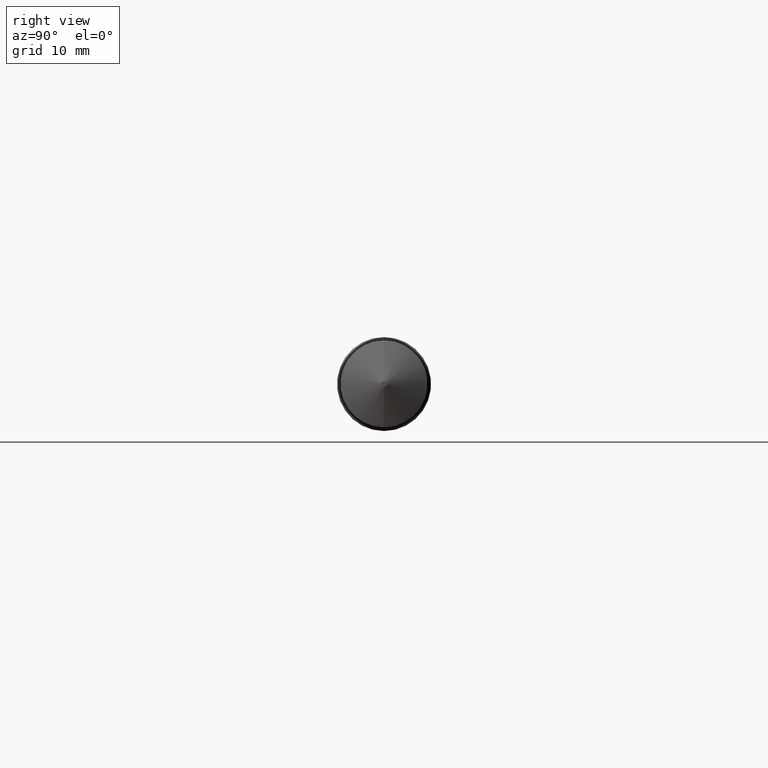
[diagram: clean part render]
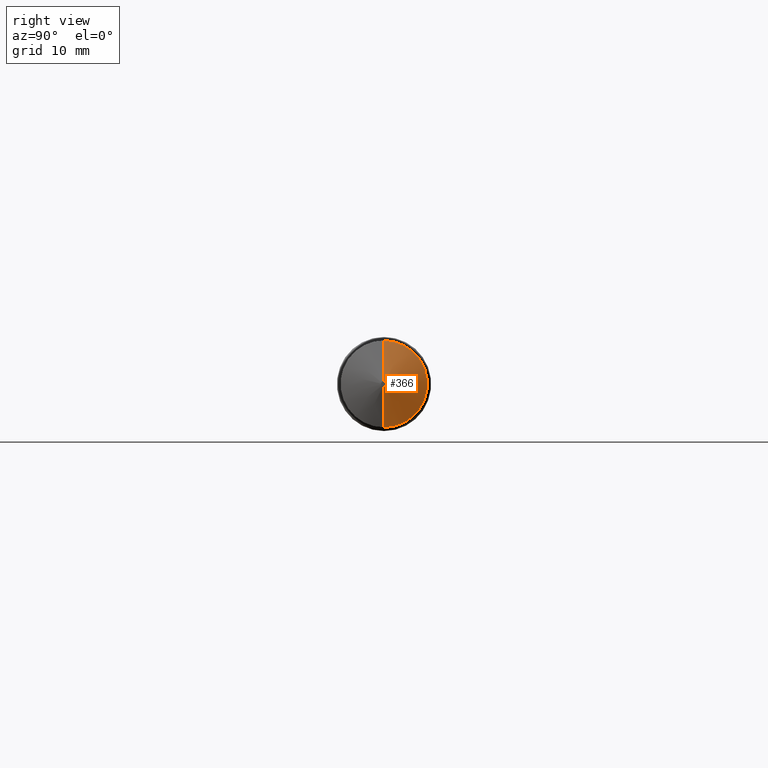
[diagram: same view with one face highlighted and labeled with its STEP entity id]
A machine part, right view. The second image highlights one B-rep face of the part: STEP entity #366.
In plain terms, the highlighted conical surface has half-angle 70 deg.
Its self-contained STEP definition (entity closure, byte-faithful):
#1 = CARTESIAN_POINT ( 'NONE',  ( 4.126337479675760811, 0.000000000000000000, 0.000000000000000000 ) ) ;
#12 = CARTESIAN_POINT ( 'NONE',  ( 4.212598425196850016, 0.000000000000000000, 0.01750000000000052208 ) ) ;
#23 = DIRECTION ( 'NONE',  ( 0.000000000000000000, 0.000000000000000000, 1.000000000000000000 ) ) ;
#26 = ORIENTED_EDGE ( 'NONE', *, *, #321, .T. ) ;
#56 = VECTOR ( 'NONE', #270, 39.37007874015748854 ) ;
#67 = DIRECTION ( 'NONE',  ( -0.3420201433256675472, 1.150791560227850763E-16, -0.9396926207859088720 ) ) ;
#83 = EDGE_CURVE ( 'NONE', #134, #99, #332, .T. ) ;
#88 = AXIS2_PLACEMENT_3D ( 'NONE', #1, #115, #233 ) ;
#90 = CARTESIAN_POINT ( 'NONE',  ( 4.126337479675760811, 0.000000000000000000, 0.2545000000000006146 ) ) ;
#91 = LINE ( 'NONE', #331, #141 ) ;
#97 = CIRCLE ( 'NONE', #125, 0.01750000000000052208 ) ;
#99 = VERTEX_POINT ( 'NONE', #90 ) ;
#115 = DIRECTION ( 'NONE',  ( 1.000000000000000000, -0.000000000000000000, -0.000000000000000000 ) ) ;
#125 = AXIS2_PLACEMENT_3D ( 'NONE', #212, #246, #128 ) ;
#128 = DIRECTION ( 'NONE',  ( 0.000000000000000000, 0.000000000000000000, -1.000000000000000000 ) ) ;
#134 = VERTEX_POINT ( 'NONE', #273 ) ;
#141 = VECTOR ( 'NONE', #67, 39.37007874015748854 ) ;
#152 = CARTESIAN_POINT ( 'NONE',  ( 4.212598425196850016, 0.000000000000000000, 0.01750000000000052208 ) ) ;
#161 = CARTESIAN_POINT ( 'NONE',  ( 4.212598425196850016, 0.000000000000000000, 0.000000000000000000 ) ) ;
#170 = EDGE_LOOP ( 'NONE', ( #374, #26, #224, #188 ) ) ;
#171 = VERTEX_POINT ( 'NONE', #12 ) ;
#187 = CARTESIAN_POINT ( 'NONE',  ( 4.212598425196850016, 1.665519646840406535E-17, -0.01750000000000052208 ) ) ;
#188 = ORIENTED_EDGE ( 'NONE', *, *, #276, .F. ) ;
#192 = FACE_OUTER_BOUND ( 'NONE', #170, .T. ) ;
#212 = CARTESIAN_POINT ( 'NONE',  ( 4.212598425196850016, 0.000000000000000000, 0.000000000000000000 ) ) ;
#214 = LINE ( 'NONE', #152, #56 ) ;
#217 = EDGE_CURVE ( 'NONE', #370, #171, #97, .T. ) ;
#224 = ORIENTED_EDGE ( 'NONE', *, *, #83, .T. ) ;
#233 = DIRECTION ( 'NONE',  ( 0.000000000000000000, 0.000000000000000000, -1.000000000000000000 ) ) ;
#237 = AXIS2_PLACEMENT_3D ( 'NONE', #161, #278, #23 ) ;
#246 = DIRECTION ( 'NONE',  ( 1.000000000000000000, -0.000000000000000000, -0.000000000000000000 ) ) ;
#270 = DIRECTION ( 'NONE',  ( -0.3420201433256675472, 0.000000000000000000, 0.9396926207859088720 ) ) ;
#273 = CARTESIAN_POINT ( 'NONE',  ( 4.126337479675760811, 3.116726103830021186E-17, -0.2545000000000006146 ) ) ;
#276 = EDGE_CURVE ( 'NONE', #171, #99, #214, .T. ) ;
#278 = DIRECTION ( 'NONE',  ( -1.000000000000000000, 0.000000000000000000, 0.000000000000000000 ) ) ;
#321 = EDGE_CURVE ( 'NONE', #370, #134, #91, .T. ) ;
#331 = CARTESIAN_POINT ( 'NONE',  ( 4.212598425196850016, 2.143131898507931930E-18, -0.01750000000000052208 ) ) ;
#332 = CIRCLE ( 'NONE', #88, 0.2545000000000005036 ) ;
#346 = CONICAL_SURFACE ( 'NONE', #237, 0.01750000000000052208, 1.221730476396031939 ) ;
#366 = ADVANCED_FACE ( 'NONE', ( #192 ), #346, .T. ) ;
#370 = VERTEX_POINT ( 'NONE', #187 ) ;
#374 = ORIENTED_EDGE ( 'NONE', *, *, #217, .F. ) ;